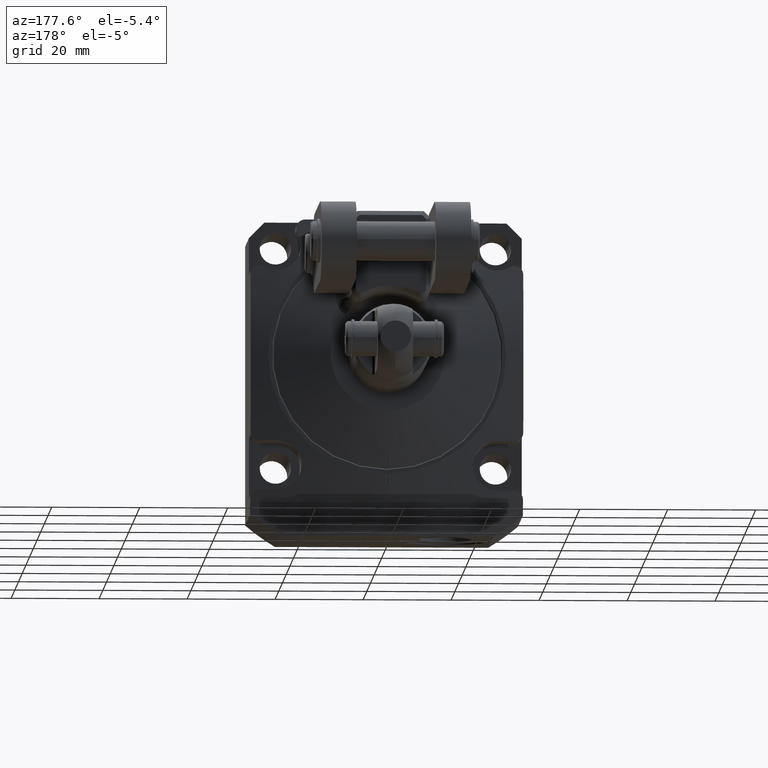
[diagram: clean part render]
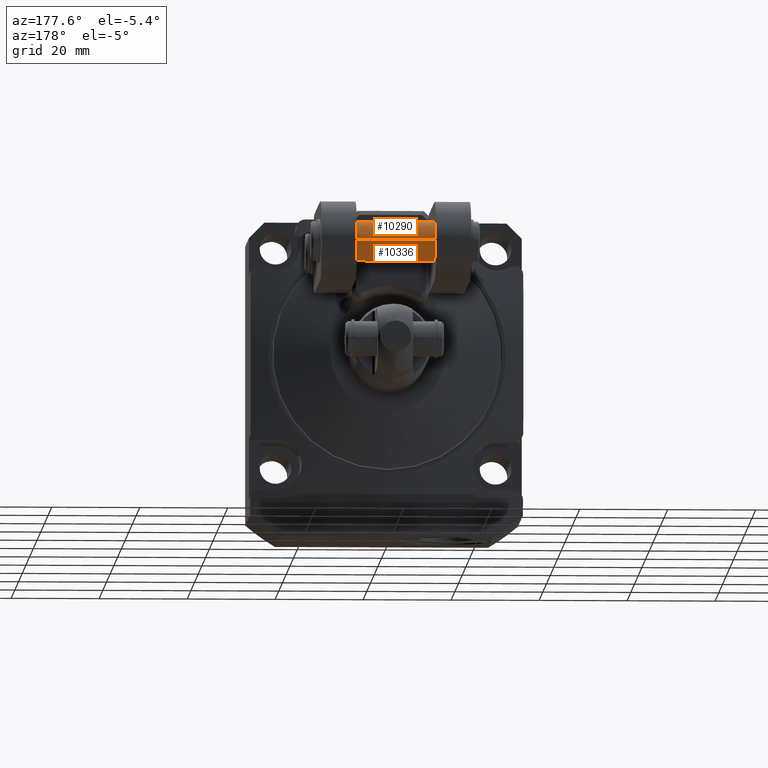
[diagram: same view with one multi-face feature highlighted, each face labeled with its STEP entity id]
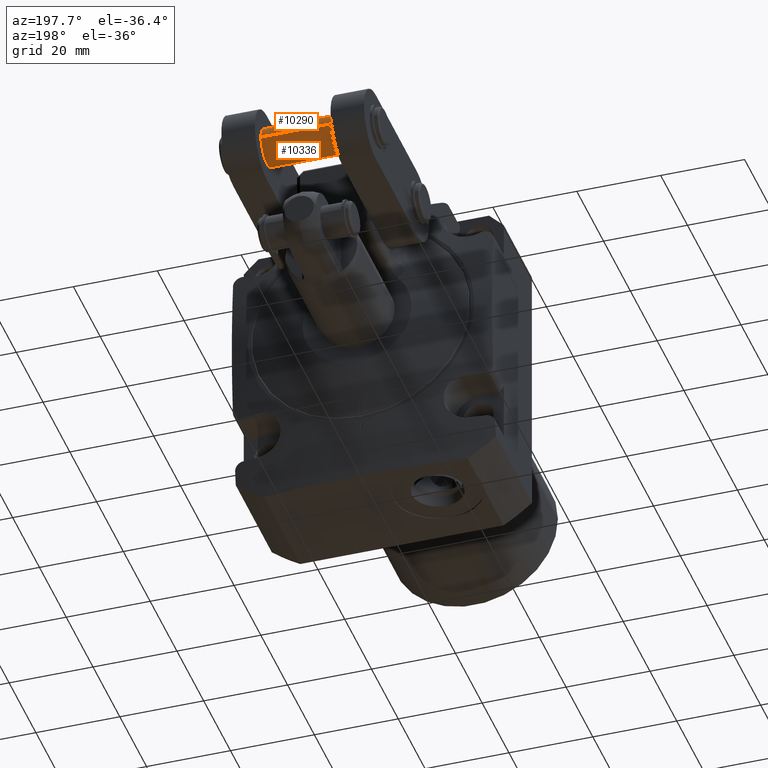
[diagram: same view with one multi-face feature highlighted, each face labeled with its STEP entity id]
A machine part, auxiliary view. The highlighted faces form ONE feature: a constant-radius fillet chain: 2 tangent blend faces with common blend radius 4.4958 mm. The faces share edges in the B-rep.
A second angle (auxiliary view) of the same feature is appended — it is thin or edge-on in the first view.
Their STEP definitions:
[1] entity #10336 (Cylinder):
#4988=CARTESIAN_POINT('',(3.545E-1,2.027999991938E0,8.658608444310E-1));
#4989=DIRECTION('',(-1.E0,0.E0,0.E0));
#4990=DIRECTION('',(0.E0,9.999999932875E-1,-1.158664188524E-4));
#4991=AXIS2_PLACEMENT_3D('',#4988,#4989,#4990);
#5264=CARTESIAN_POINT('',(-3.545E-1,2.027999991938E0,8.658608444310E-1));
#5265=DIRECTION('',(1.E0,0.E0,0.E0));
#5266=DIRECTION('',(0.E0,-9.999999932875E-1,1.158664188530E-4));
#5267=AXIS2_PLACEMENT_3D('',#5264,#5265,#5266);
#6493=DIRECTION('',(-1.E0,0.E0,0.E0));
#6494=VECTOR('',#6493,7.09E-1);
#6495=CARTESIAN_POINT('',(3.545E-1,2.204999990750E0,8.658403360748E-1));
#6496=LINE('',#6495,#6494);
#6500=DIRECTION('',(-1.E0,0.E0,0.E0));
#6501=VECTOR('',#6500,7.09E-1);
#6502=CARTESIAN_POINT('',(3.545E-1,1.850999993126E0,8.658813527871E-1));
#6503=LINE('',#6502,#6501);
#8337=CARTESIAN_POINT('',(3.545E-1,2.204999990750E0,8.658403360748E-1));
#8338=CARTESIAN_POINT('',(-3.545E-1,2.204999990750E0,8.658403360748E-1));
#8339=VERTEX_POINT('',#8337);
#8340=VERTEX_POINT('',#8338);
#8345=CARTESIAN_POINT('',(3.545E-1,1.850999993126E0,8.658813527871E-1));
#8346=CARTESIAN_POINT('',(-3.545E-1,1.850999993126E0,8.658813527871E-1));
#8347=VERTEX_POINT('',#8345);
#8348=VERTEX_POINT('',#8346);
#10325=CARTESIAN_POINT('',(-8.294E-1,2.027999991938E0,8.658608444310E-1));
#10326=DIRECTION('',(1.E0,0.E0,0.E0));
#10327=DIRECTION('',(0.E0,-9.999999932875E-1,1.158664188528E-4));
#10328=AXIS2_PLACEMENT_3D('',#10325,#10326,#10327);
#10329=CYLINDRICAL_SURFACE('',#10328,1.77E-1);
#10330=ORIENTED_EDGE('',*,*,#10282,.T.);
#10331=ORIENTED_EDGE('',*,*,#9167,.F.);
#10332=ORIENTED_EDGE('',*,*,#10285,.F.);
#10333=ORIENTED_EDGE('',*,*,#8963,.F.);
#10334=EDGE_LOOP('',(#10330,#10331,#10332,#10333));
#10335=FACE_OUTER_BOUND('',#10334,.F.);
#4992=CIRCLE('',#4991,1.77E-1);
#5268=CIRCLE('',#5267,1.77E-1);
#8963=EDGE_CURVE('',#8339,#8347,#4992,.T.);
#9167=EDGE_CURVE('',#8348,#8340,#5268,.T.);
#10282=EDGE_CURVE('',#8339,#8340,#6496,.T.);
#10285=EDGE_CURVE('',#8347,#8348,#6503,.T.);
#10336=ADVANCED_FACE('',(#10335),#10329,.T.);
[2] entity #10290 (Cylinder):
#4980=CARTESIAN_POINT('',(3.545E-1,2.027999991938E0,8.658608444310E-1));
#4981=DIRECTION('',(-1.E0,0.E0,0.E0));
#4982=DIRECTION('',(0.E0,-9.999999932875E-1,1.158664188530E-4));
#4983=AXIS2_PLACEMENT_3D('',#4980,#4981,#4982);
#5256=CARTESIAN_POINT('',(-3.545E-1,2.027999991938E0,8.658608444310E-1));
#5257=DIRECTION('',(1.E0,0.E0,0.E0));
#5258=DIRECTION('',(0.E0,9.999999932875E-1,-1.158664188524E-4));
#5259=AXIS2_PLACEMENT_3D('',#5256,#5257,#5258);
#6493=DIRECTION('',(-1.E0,0.E0,0.E0));
#6494=VECTOR('',#6493,7.09E-1);
#6495=CARTESIAN_POINT('',(3.545E-1,2.204999990750E0,8.658403360748E-1));
#6496=LINE('',#6495,#6494);
#6500=DIRECTION('',(-1.E0,0.E0,0.E0));
#6501=VECTOR('',#6500,7.09E-1);
#6502=CARTESIAN_POINT('',(3.545E-1,1.850999993126E0,8.658813527871E-1));
#6503=LINE('',#6502,#6501);
#8337=CARTESIAN_POINT('',(3.545E-1,2.204999990750E0,8.658403360748E-1));
#8338=CARTESIAN_POINT('',(-3.545E-1,2.204999990750E0,8.658403360748E-1));
#8339=VERTEX_POINT('',#8337);
#8340=VERTEX_POINT('',#8338);
#8345=CARTESIAN_POINT('',(3.545E-1,1.850999993126E0,8.658813527871E-1));
#8346=CARTESIAN_POINT('',(-3.545E-1,1.850999993126E0,8.658813527871E-1));
#8347=VERTEX_POINT('',#8345);
#8348=VERTEX_POINT('',#8346);
#10277=CARTESIAN_POINT('',(-8.294E-1,2.027999991938E0,8.658608444310E-1));
#10278=DIRECTION('',(1.E0,0.E0,0.E0));
#10279=DIRECTION('',(0.E0,-9.999999932875E-1,1.158664188528E-4));
#10280=AXIS2_PLACEMENT_3D('',#10277,#10278,#10279);
#10281=CYLINDRICAL_SURFACE('',#10280,1.77E-1);
#10283=ORIENTED_EDGE('',*,*,#10282,.F.);
#10284=ORIENTED_EDGE('',*,*,#8961,.F.);
#10286=ORIENTED_EDGE('',*,*,#10285,.T.);
#10287=ORIENTED_EDGE('',*,*,#9165,.F.);
#10288=EDGE_LOOP('',(#10283,#10284,#10286,#10287));
#10289=FACE_OUTER_BOUND('',#10288,.F.);
#4984=CIRCLE('',#4983,1.77E-1);
#5260=CIRCLE('',#5259,1.77E-1);
#8961=EDGE_CURVE('',#8347,#8339,#4984,.T.);
#9165=EDGE_CURVE('',#8340,#8348,#5260,.T.);
#10282=EDGE_CURVE('',#8339,#8340,#6496,.T.);
#10285=EDGE_CURVE('',#8347,#8348,#6503,.T.);
#10290=ADVANCED_FACE('',(#10289),#10281,.T.);